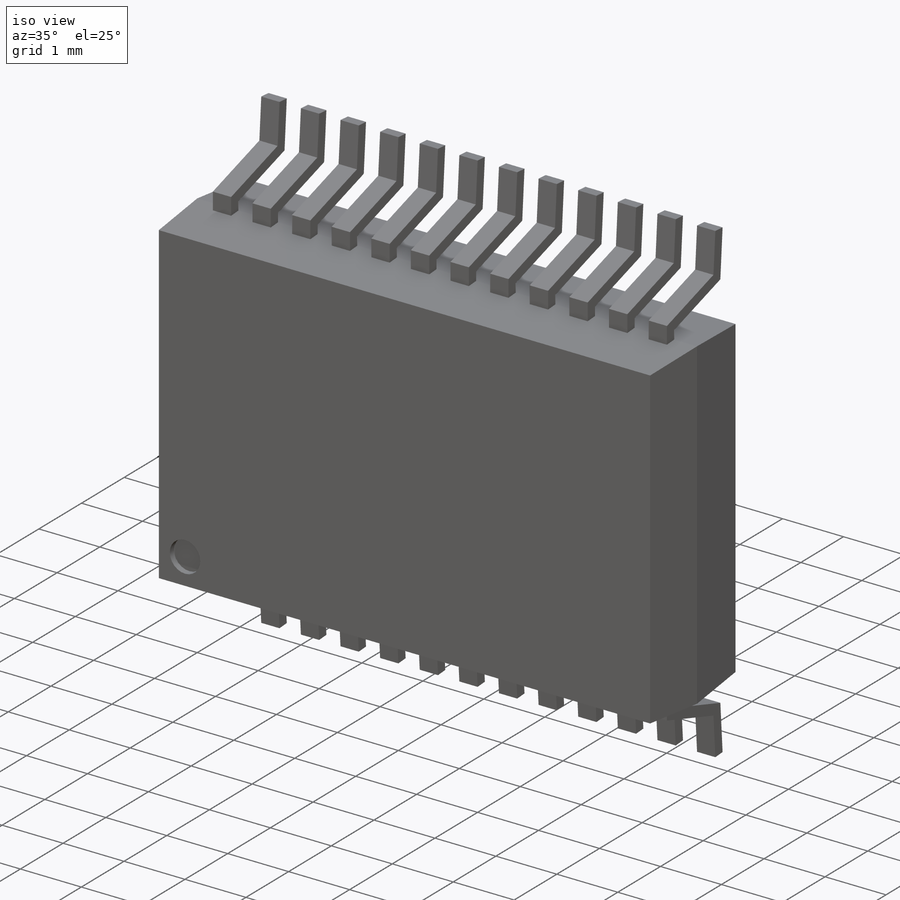
[diagram: iso view]
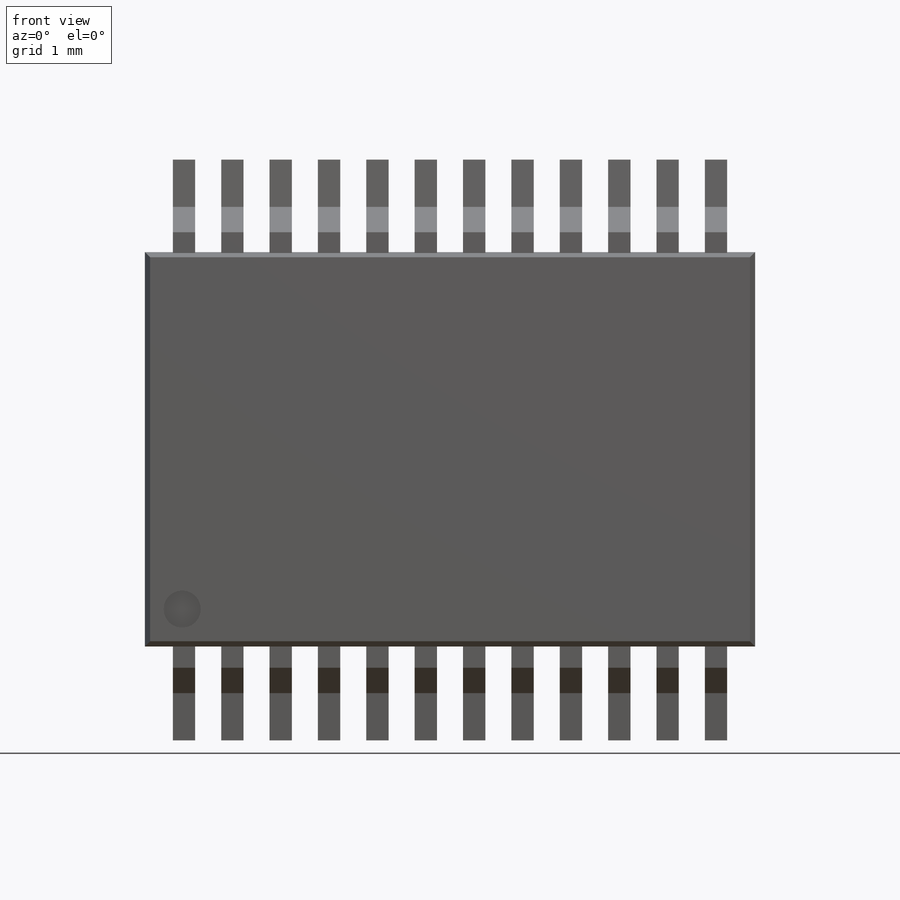
[diagram: front view]
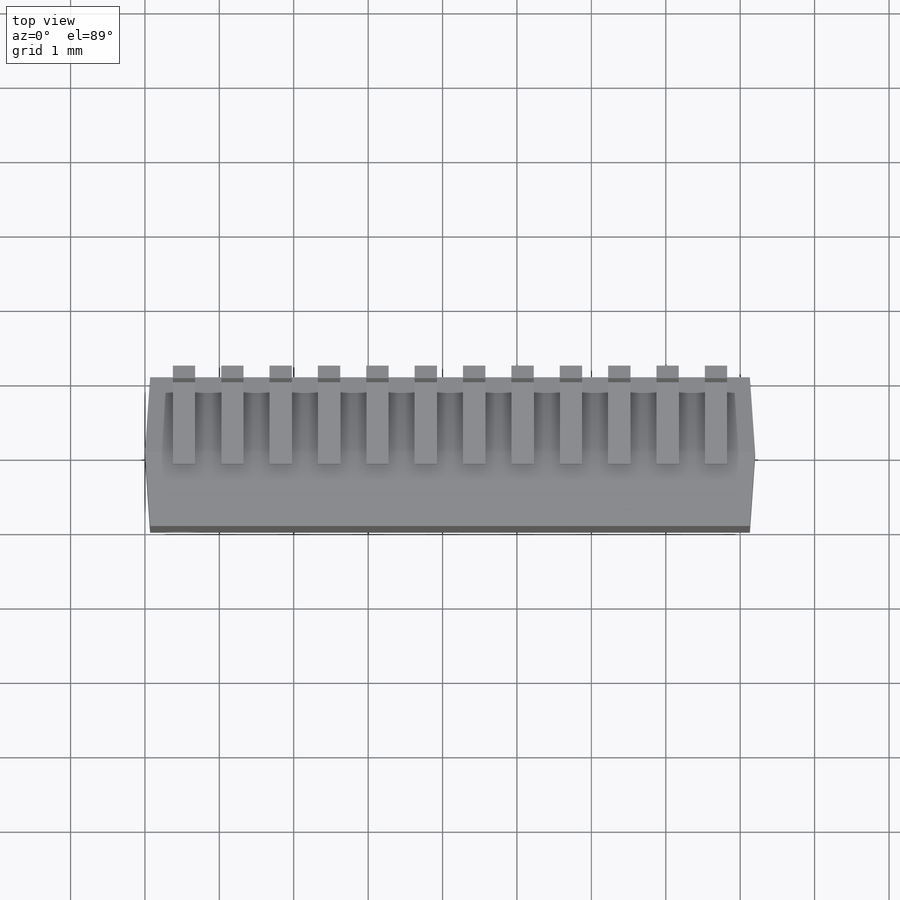
[diagram: top view]
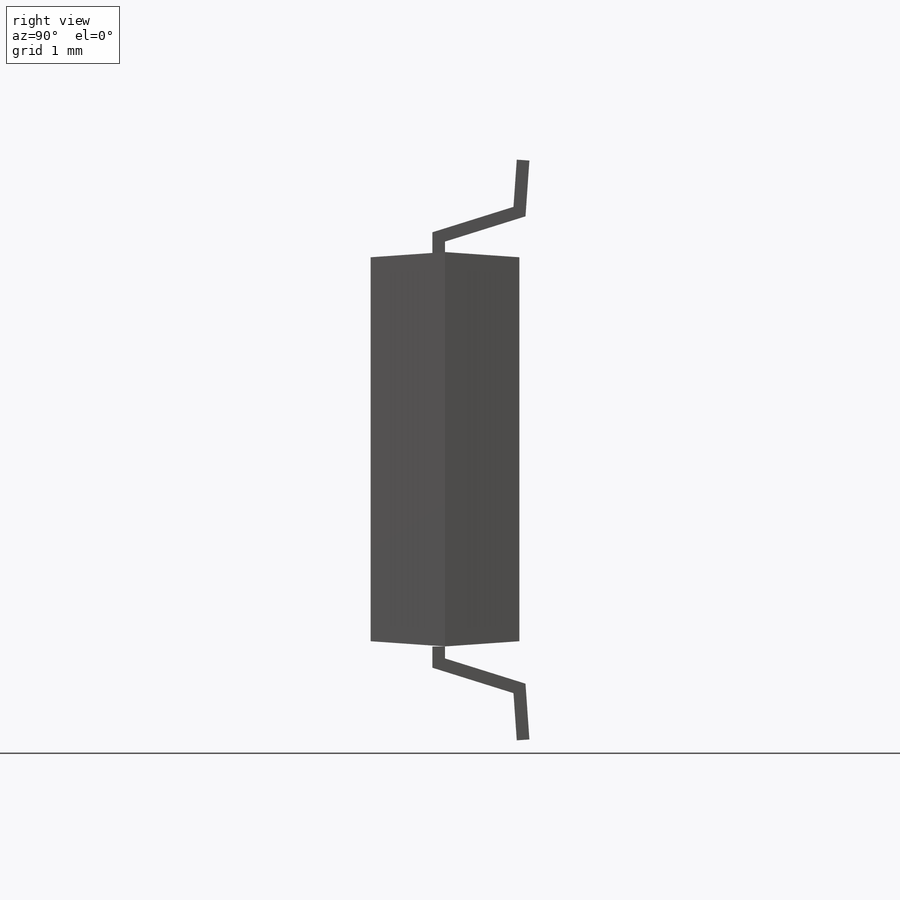
[diagram: right view]
SOLIDWORKS PART (.sldprt)
format: sldprt  version: not decoded by parser v0  size: 345,088 bytes
history: native  units: mm
features: sketch x3, mirror x2, plane x2, material x1, extrude x1, pattern_linear x1, cut_extrude x1 (+13 scaffold rows collapsed)
feature tree (24):
  scaffold x13  (default folders/planes/origin — collapsed)
  material  "Material <not specified>"
  sketch  "Sketch1"  dims[D1=5.3mm D2=8.2mm]
  extrude  "Boss-Extrude1"  Depth=1mm
  mirror  "Mirror1"
  plane  "Plane1"  Offset=0.525mm
  sketch  "Sketch2"  dims[c1.D1=~0.588781mm c2.D1=4.0deg c2.D2=0.75mm c2.D3=1.25mm c3.D1=0.3mm c3.D5=0.17mm c3.D6=10.0mm c3.D7=5.0mm]
  pattern_linear  "LPattern1"  Count1=12 Count2=1 Spacing1=0.65mm Spacing2=10mm
  plane  "Plane2"  Offset=2.64mm
  mirror  "Mirror2"
  sketch  "Sketch3"  dims[D1=0.5mm D2=0.5mm D3=0.5mm]
  cut_extrude  "Cut-Extrude1"  Depth=0.1mm
decode coverage: 6 of 8 modeling features carry decoded parameters
note: ~ marks probable driven/reference dimensions
note: suppression state not decoded; provenance and decode notes live in map.json
